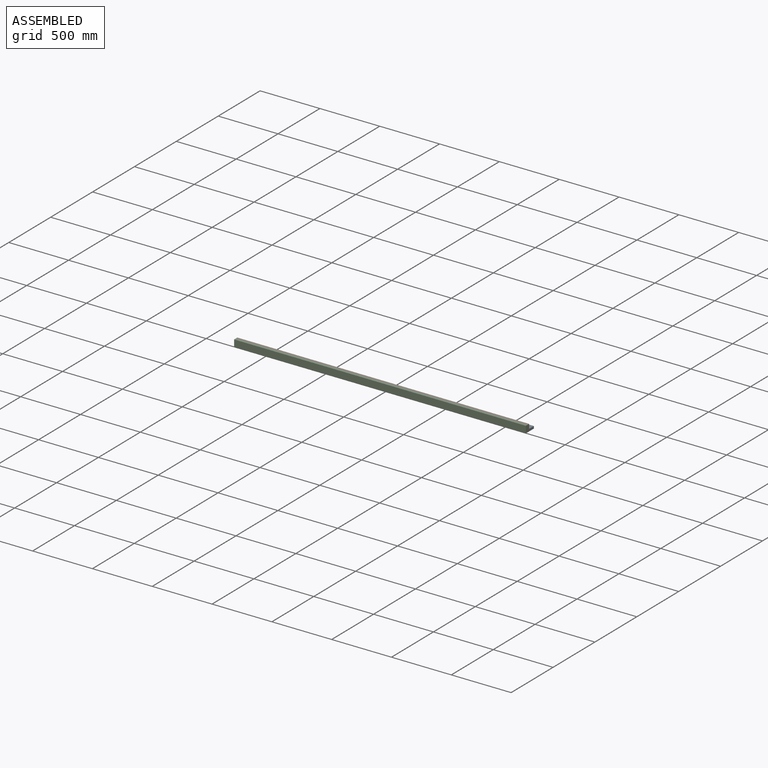
[diagram: assembled view]
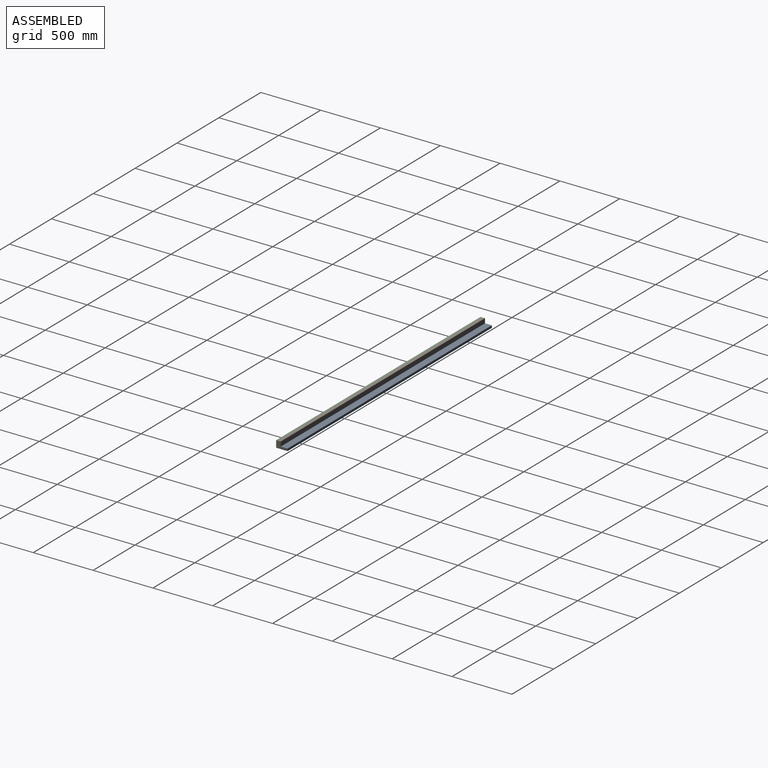
[diagram: assembled view, second angle]
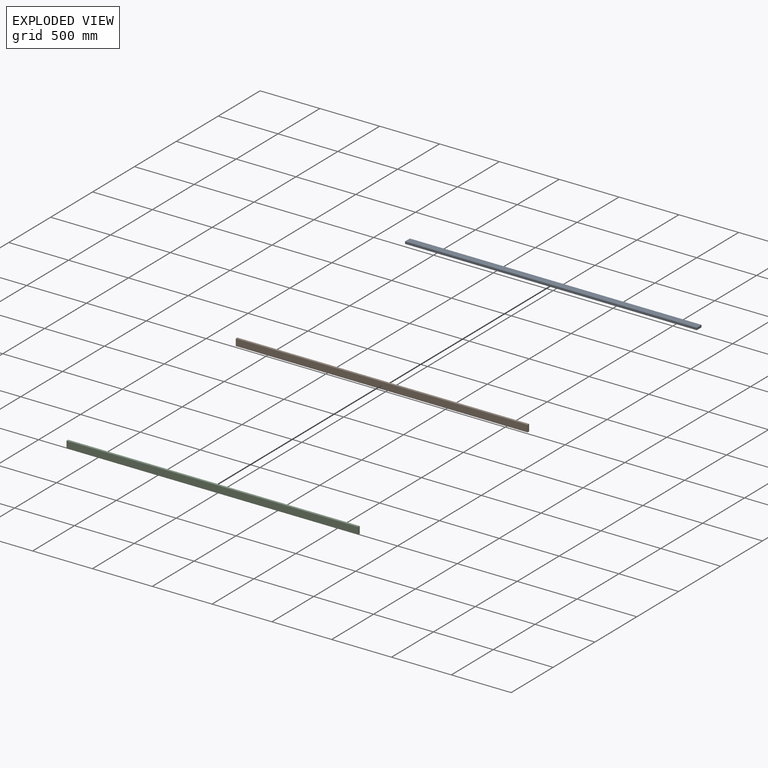
[diagram: exploded view]
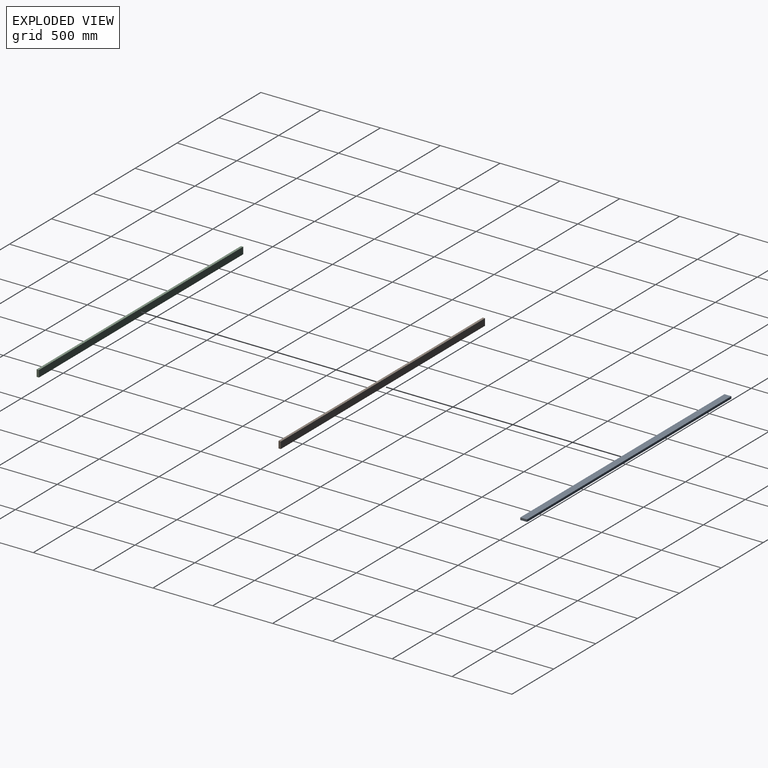
[diagram: exploded view, second angle]
ASSEMBLY  parts=3 mates=2
PART A: 6 faces, bbox 2438.4x57.2x19.1 mm
  f0: plane 57.15x19.05mm, normal (-1,0,0), area 1088.7mm2, adj f1,f3,f4,f5
  f1: plane 2438.4x19.05mm, normal (0,-1,0), area 46451.5mm2, adj f0,f2,f4,f5
  f2: plane 57.15x19.05mm, normal (1,0,0), area 1088.7mm2, adj f1,f3,f4,f5
  f3: plane 2438.4x19.05mm, normal (0,1,0), area 46451.5mm2, adj f0,f2,f4,f5
  f4: plane 2438.4x57.15mm, normal (0,0,1), area 139354.6mm2, adj f0,f1,f2,f3
  f5: plane 2438.4x57.15mm, normal (0,0,-1), area 139354.6mm2, adj f0,f1,f2,f3
PART B: same geometry as A
PART C: same geometry as A
PLACE A t=(-1219.2,-28.57,0)mm
PLACE B rot(axis=(1,0,0),90deg) t=(-1219.2,-28.57,0)mm
PLACE C rot(axis=(1,0,0),90deg) t=(-1219.2,-47.62,0)mm
MATE fastened B.f4 <-> C.f5  axis (0,-1,0) through (0,-47.62,0)mm
MATE fastened A.f1 <-> B.f5  axis (0,-1,0) through (0,-28.57,0)mm
